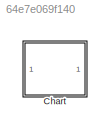
MODEL slx_64e7e069f140
KIND model
CONFIG AbsTol = auto
CONFIG EnableMultiTasking = on
CONFIG FixedStep = 0.1
CONFIG MaxStep = auto
CONFIG MinStep = auto
CONFIG RelTol = 1e-3
CONFIG SampleTimeConstraint = Unconstrained
CONFIG SolverName = FixedStepDiscrete
CONFIG StartTime = 0.0
CONFIG StopTime = 0.1
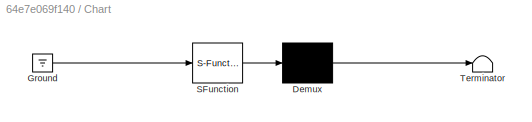
BLOCK [SubSystem] Chart
  ErrorFcn = Stateflow.Translate.translate
  PermitHierarchicalResolution = ExplicitOnly
  Ports = []
  RequestExecContextInheritance = off
  SFBlockType = Chart
  TreatAsAtomicUnit = on
BLOCK [Demux] Chart/ Demux 
  Outputs = 1
  Ports = [1, 1]
BLOCK [Ground] Chart/ Ground 
BLOCK [S-Function] Chart/ SFunction 
  EnableBusSupport = on
  FunctionName = sf_sfun
  PortCounts = [1 1]
  Ports = [1, 1]
  SFcnIsStateOwnerBlock = off
  SFunctionDeploymentMode = off
  Tag = Stateflow S-Function 3
BLOCK [Terminator] Chart/ Terminator 
CHART Chart states=5 transitions=12
  STATE_LABEL 'index=find(N)'
  STATE_LABEL '{index=i;}'
  STATE_LABEL '{i=1;a=1;}'
  STATE_LABEL '[i>N]'
  STATE_LABEL '{index=-1;}'
  STATE_LABEL '[i<=N&&a<=2]'
  STATE_LABEL '{i=i+1;a=a+1;}'
  STATE_LABEL '[r,s]=square(i1,j1)'
  STATE_LABEL '{r=i1*i1;}'
  STATE_LABEL '{s=j1*j1;}'
  STATE_LABEL 'f(s)'
  STATE_LABEL 'SCRIPT:\nfunction f(s)\n  fprintf(s+"\\n");\n'
  STATE_LABEL 'B\nen: f("en_B");\n [x,y]=square(x,y);\n fprintf("%f",x);\n fprintf("%f", x)'
  STATE_LABEL 'A\nen: f("en_A")'
CHART  states=0 transitions=0
